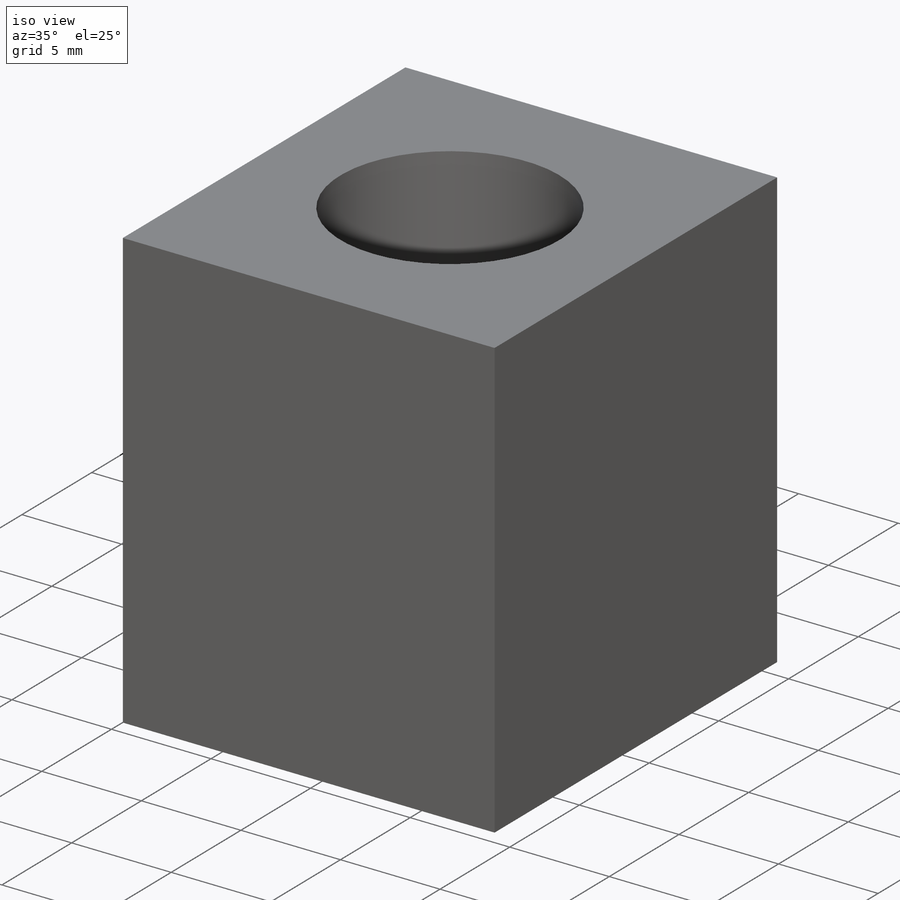
[diagram: iso view]
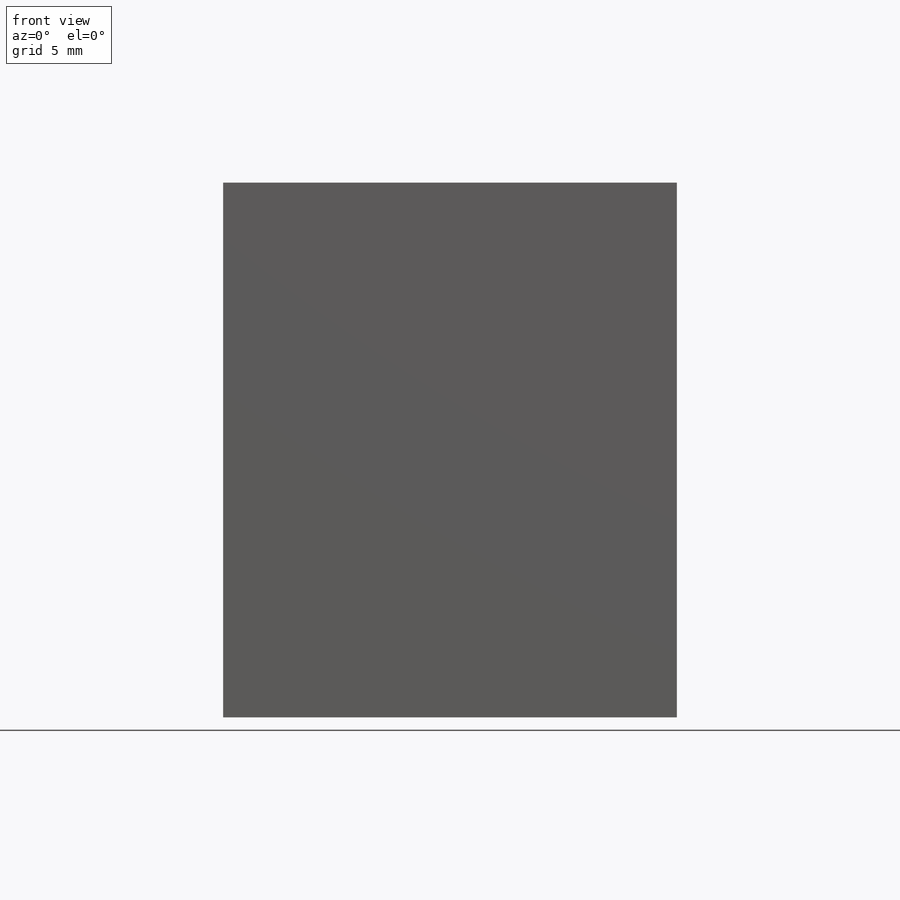
[diagram: front view]
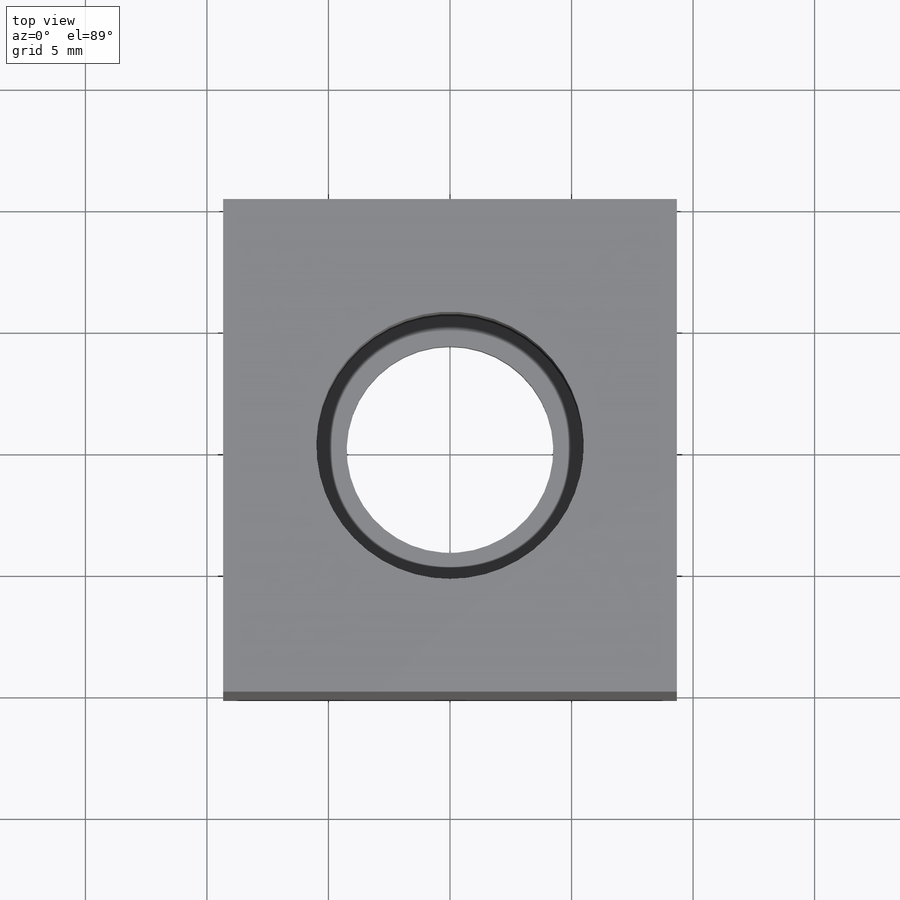
[diagram: top view]
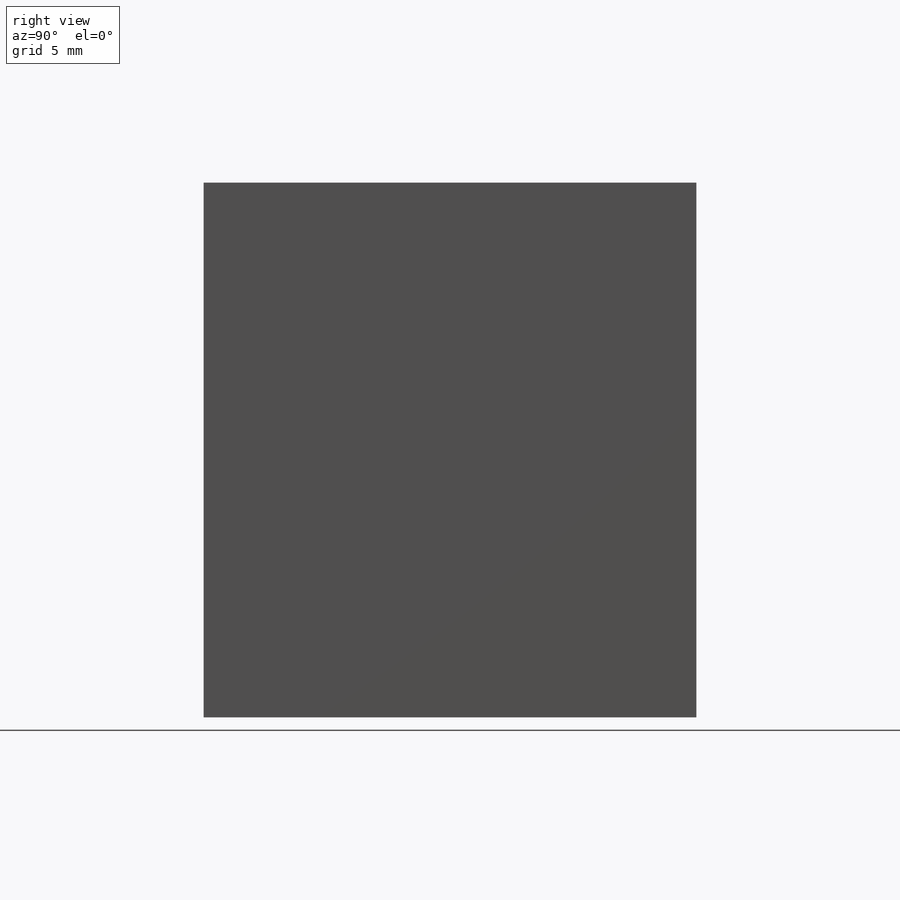
[diagram: right view]
SOLIDWORKS PART (.sldprt)
format: sldprt  version: not decoded by parser v0  size: 235,008 bytes
history: native  units: mm
features: sketch x4, cut_extrude x3, material x1, extrude x1, shell x1 (+11 scaffold rows collapsed)
feature tree (21):
  scaffold x11  (default folders/planes/origin — collapsed)
  material  "ABS PC"
  sketch  "Sketch1"  dims[D1=20.27mm D2=18.67mm]
  extrude  "Boss-Extrude1"  Depth=22mm
  sketch  "Sketch2"  dims[D1=11.0mm]
  cut_extrude  "Cut-Extrude1"  Depth=10mm
  sketch  "Sketch3"  dims[D1=1.0mm]
  cut_extrude  "Cut-Extrude2"  Depth=10mm
  shell  "Shell1"  Thickness=2mm
  sketch  "Sketch4"  dims[D1=8.5mm]
  cut_extrude  "Cut-Extrude3"  [1 undecoded]
decode coverage: 8 of 9 modeling features carry decoded parameters
note: 1 parameter value undecoded
note: suppression state not decoded; provenance and decode notes live in map.json
